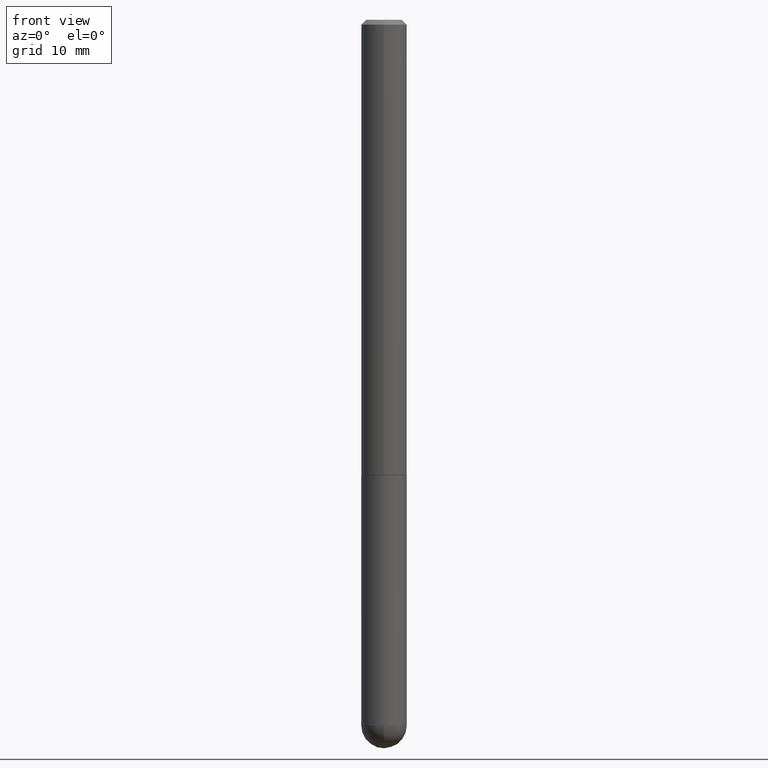
[diagram: clean part render]
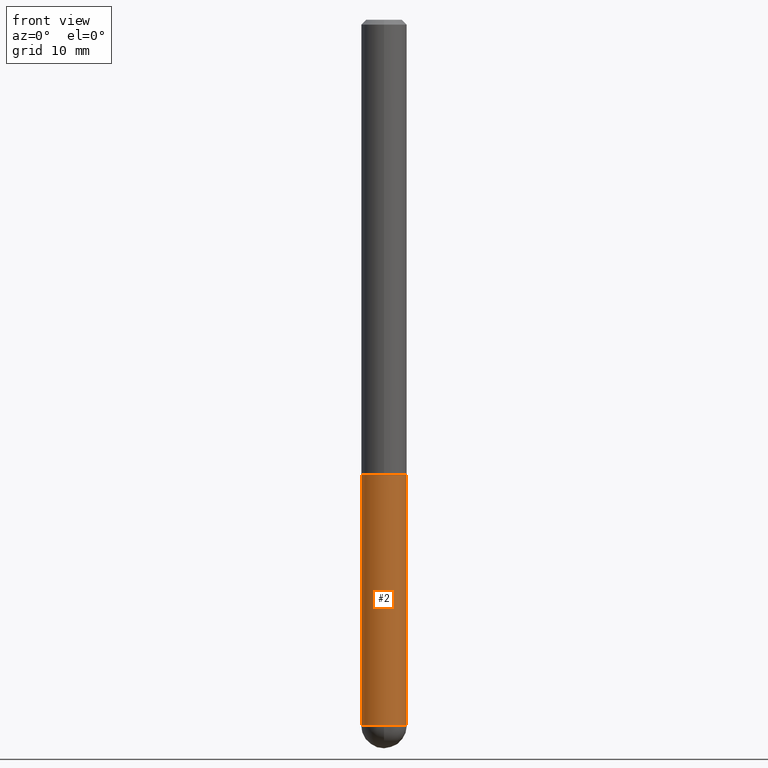
[diagram: same view with one face highlighted and labeled with its STEP entity id]
A machine part, front view. The second image highlights one B-rep face of the part: STEP entity #2.
In plain terms, the highlighted cylindrical surface (edge-blend (fillet) strip) has radius 2.3812 mm, axis along (-0, 0, 1).
Its self-contained STEP definition (entity closure, byte-faithful):
#2 = ADVANCED_FACE ( 'NONE', ( #400 ), #149, .T. ) ;
#10 = ORIENTED_EDGE ( 'NONE', *, *, #93, .T. ) ;
#19 = LINE ( 'NONE', #112, #249 ) ;
#60 = DIRECTION ( 'NONE',  ( -2.445468806185136877E-29, 3.491481338843145188E-15, 1.000000000000000000 ) ) ;
#63 = LINE ( 'NONE', #379, #207 ) ;
#76 = DIRECTION ( 'NONE',  ( 1.000000000000000000, -6.982962677686261189E-15, 0.000000000000000000 ) ) ;
#77 = VERTEX_POINT ( 'NONE', #364 ) ;
#79 = ORIENTED_EDGE ( 'NONE', *, *, #166, .T. ) ;
#84 = CARTESIAN_POINT ( 'NONE',  ( 0.000000000000000000, 0.000000000000000000, 0.000000000000000000 ) ) ;
#89 = CIRCLE ( 'NONE', #302, 0.09374999999999998612 ) ;
#93 = EDGE_CURVE ( 'NONE', #144, #322, #293, .T. ) ;
#107 = DIRECTION ( 'NONE',  ( 1.000000000000000000, -6.982962677686263555E-15, 0.000000000000000000 ) ) ;
#112 = CARTESIAN_POINT ( 'NONE',  ( -0.09374999999999998612, 6.661338147750938256E-16, -4.611501647113973295E-30 ) ) ;
#114 = CARTESIAN_POINT ( 'NONE',  ( -0.09375000000000001388, -7.680688760896801533E-15, -1.875000000000000000 ) ) ;
#115 = EDGE_CURVE ( 'NONE', #326, #136, #19, .T. ) ;
#120 = DIRECTION ( 'NONE',  ( 1.000000000000000000, -6.982962677686263555E-15, 0.000000000000000000 ) ) ;
#136 = VERTEX_POINT ( 'NONE', #114 ) ;
#144 = VERTEX_POINT ( 'NONE', #402 ) ;
#149 = CYLINDRICAL_SURFACE ( 'NONE', #406, 0.09374999999999998612 ) ;
#150 = DIRECTION ( 'NONE',  ( -2.445468806185136877E-29, 3.491481338843145188E-15, 1.000000000000000000 ) ) ;
#151 = CARTESIAN_POINT ( 'NONE',  ( 7.107143717975553234E-29, -1.014711764101289221E-14, -2.906250000000000000 ) ) ;
#166 = EDGE_CURVE ( 'NONE', #322, #77, #63, .T. ) ;
#168 = CARTESIAN_POINT ( 'NONE',  ( 4.585254011597131119E-29, -6.546527510330898707E-15, -1.875000000000000000 ) ) ;
#174 = ORIENTED_EDGE ( 'NONE', *, *, #115, .F. ) ;
#207 = VECTOR ( 'NONE', #60, 39.37007874015748143 ) ;
#233 = AXIS2_PLACEMENT_3D ( 'NONE', #168, #284, #76 ) ;
#238 = ORIENTED_EDGE ( 'NONE', *, *, #303, .T. ) ;
#249 = VECTOR ( 'NONE', #150, 39.37007874015748143 ) ;
#258 = CARTESIAN_POINT ( 'NONE',  ( 7.107143717975553234E-29, -1.014711764101289221E-14, -2.906250000000000000 ) ) ;
#269 = DIRECTION ( 'NONE',  ( 1.000000000000000000, -6.982962677686266711E-15, 4.876176775795935793E-29 ) ) ;
#273 = DIRECTION ( 'NONE',  ( -2.445468806185136597E-29, 3.491481338843145583E-15, 1.000000000000000000 ) ) ;
#274 = AXIS2_PLACEMENT_3D ( 'NONE', #151, #273, #120 ) ;
#280 = CIRCLE ( 'NONE', #233, 0.09375000000000001388 ) ;
#284 = DIRECTION ( 'NONE',  ( -2.445468806185136597E-29, 3.491481338843145583E-15, 1.000000000000000000 ) ) ;
#288 = DIRECTION ( 'NONE',  ( -2.445468806185136597E-29, 3.491481338843145583E-15, 1.000000000000000000 ) ) ;
#289 = ORIENTED_EDGE ( 'NONE', *, *, #353, .F. ) ;
#293 = CIRCLE ( 'NONE', #274, 0.09374999999999998612 ) ;
#302 = AXIS2_PLACEMENT_3D ( 'NONE', #258, #288, #107 ) ;
#303 = EDGE_CURVE ( 'NONE', #326, #144, #89, .T. ) ;
#318 = CARTESIAN_POINT ( 'NONE',  ( 0.09374999999999998612, -9.001475326704983750E-15, -2.906250000000000000 ) ) ;
#322 = VERTEX_POINT ( 'NONE', #318 ) ;
#326 = VERTEX_POINT ( 'NONE', #387 ) ;
#353 = EDGE_CURVE ( 'NONE', #136, #77, #280, .T. ) ;
#357 = EDGE_LOOP ( 'NONE', ( #174, #238, #10, #79, #289 ) ) ;
#364 = CARTESIAN_POINT ( 'NONE',  ( 0.09375000000000001388, -7.201180261363985422E-15, -1.875000000000000000 ) ) ;
#366 = DIRECTION ( 'NONE',  ( -2.445468806185136597E-29, 3.491481338843145583E-15, 1.000000000000000000 ) ) ;
#379 = CARTESIAN_POINT ( 'NONE',  ( 0.09374999999999998612, -6.546527510330874055E-16, 4.571415727308689105E-30 ) ) ;
#387 = CARTESIAN_POINT ( 'NONE',  ( -0.09374999999999998612, -7.680688760896803110E-15, -2.906250000000000000 ) ) ;
#400 = FACE_OUTER_BOUND ( 'NONE', #357, .T. ) ;
#402 = CARTESIAN_POINT ( 'NONE',  ( -6.661338147750251947E-16, -0.09375000000001050549, -2.906249999999999556 ) ) ;
#406 = AXIS2_PLACEMENT_3D ( 'NONE', #84, #366, #269 ) ;